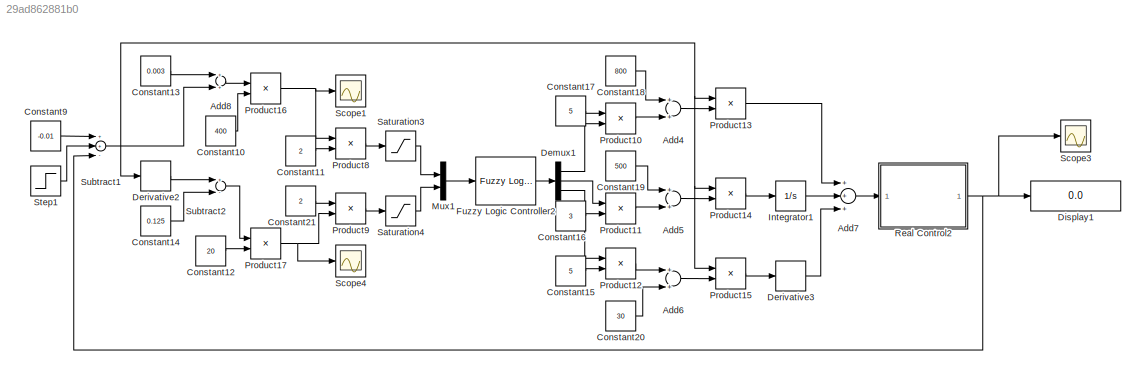
MODEL slx_29ad862881b0
KIND model
BLOCK [Sum] Add4
  InputSameDT = off
  OutDataTypeStr = Inherit: Inherit via internal rule
  Ports = [2, 1]
  SaturateOnIntegerOverflow = off
BLOCK [Sum] Add5
  InputSameDT = off
  OutDataTypeStr = Inherit: Inherit via internal rule
  Ports = [2, 1]
  SaturateOnIntegerOverflow = off
BLOCK [Sum] Add6
  InputSameDT = off
  OutDataTypeStr = Inherit: Inherit via internal rule
  Ports = [2, 1]
  SaturateOnIntegerOverflow = off
BLOCK [Sum] Add7
  InputSameDT = off
  Inputs = +++
  OutDataTypeStr = Inherit: Inherit via internal rule
  Ports = [3, 1]
  SaturateOnIntegerOverflow = off
BLOCK [Sum] Add8
  InputSameDT = off
  OutDataTypeStr = Inherit: Inherit via internal rule
  Ports = [2, 1]
  SaturateOnIntegerOverflow = off
BLOCK [Constant] Constant10
  Value = 400
BLOCK [Constant] Constant11
  Value = 2
BLOCK [Constant] Constant12
  Value = 20
BLOCK [Constant] Constant13
  Value = 0.003
BLOCK [Constant] Constant14
  Value = 0.125
BLOCK [Constant] Constant15
  Value = 5
BLOCK [Constant] Constant16
  Value = 3
BLOCK [Constant] Constant17
  Value = 5
BLOCK [Constant] Constant18
  Value = 800
BLOCK [Constant] Constant19
  Value = 500
BLOCK [Constant] Constant20
  Value = 30
BLOCK [Constant] Constant21
  Value = 2
BLOCK [Constant] Constant9
  Value = -0.01
BLOCK [Demux] Demux1
  DisplayOption = bar
  Outputs = 3
  Ports = [1, 3]
BLOCK [Derivative] Derivative2
BLOCK [Derivative] Derivative3
BLOCK [Display] Display1
  Decimation = 1
  Ports = [1]
BLOCK [Reference] Fuzzy Logic Controller2  REF=fuzblock/Fuzzy Logic   (lib defined in mdl_858b3b3e7478)
Controller
  Ports = [1, 1]
  SourceBlock = fuzblock/Fuzzy Logic \nController
  SourceType = FIS
  fis = [test]
BLOCK [Integrator] Integrator1
  Ports = [1, 1]
BLOCK [Mux] Mux1
  DisplayOption = bar
  Inputs = 2
  Ports = [2, 1]
BLOCK [Product] Product10
  InputSameDT = off
  OutDataTypeStr = Inherit: Inherit via internal rule
  Ports = [2, 1]
  RndMeth = Floor
  SaturateOnIntegerOverflow = off
BLOCK [Product] Product11
  InputSameDT = off
  OutDataTypeStr = Inherit: Inherit via internal rule
  Ports = [2, 1]
  RndMeth = Floor
  SaturateOnIntegerOverflow = off
BLOCK [Product] Product12
  InputSameDT = off
  OutDataTypeStr = Inherit: Inherit via internal rule
  Ports = [2, 1]
  RndMeth = Floor
  SaturateOnIntegerOverflow = off
BLOCK [Product] Product13
  InputSameDT = off
  OutDataTypeStr = Inherit: Inherit via internal rule
  Ports = [2, 1]
  RndMeth = Floor
  SaturateOnIntegerOverflow = off
BLOCK [Product] Product14
  InputSameDT = off
  OutDataTypeStr = Inherit: Inherit via internal rule
  Ports = [2, 1]
  RndMeth = Floor
  SaturateOnIntegerOverflow = off
BLOCK [Product] Product15
  InputSameDT = off
  OutDataTypeStr = Inherit: Inherit via internal rule
  Ports = [2, 1]
  RndMeth = Floor
  SaturateOnIntegerOverflow = off
BLOCK [Product] Product16
  InputSameDT = off
  OutDataTypeStr = Inherit: Inherit via internal rule
  Ports = [2, 1]
  RndMeth = Floor
  SaturateOnIntegerOverflow = off
BLOCK [Product] Product17
  InputSameDT = off
  OutDataTypeStr = Inherit: Inherit via internal rule
  Ports = [2, 1]
  RndMeth = Floor
  SaturateOnIntegerOverflow = off
BLOCK [Product] Product8
  InputSameDT = off
  OutDataTypeStr = Inherit: Inherit via internal rule
  Ports = [2, 1]
  RndMeth = Floor
  SaturateOnIntegerOverflow = off
BLOCK [Product] Product9
  InputSameDT = off
  OutDataTypeStr = Inherit: Inherit via internal rule
  Ports = [2, 1]
  RndMeth = Floor
  SaturateOnIntegerOverflow = off
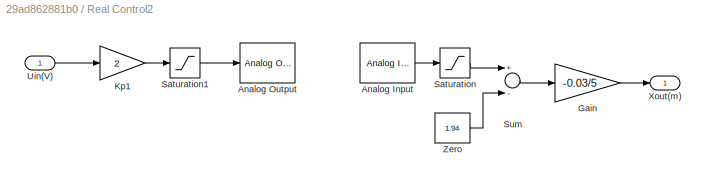
BLOCK [SubSystem] Real Control2
  Ports = [1, 1]
  RequestExecContextInheritance = off
BLOCK [Reference] Real Control2/Analog Input  REF=rtwinlib/Analog Input
  AttributesFormatString = Advantech\nPCI-1711 [auto]
  Channels = 1
  DataType = 1
  DrvAddress = 4294967295
  DrvName = Advantech/PCI-1711
  DrvOptions = zeros(1,0)
  MaxMissedTicks = 10
  Ports = [0, 1]
  RangeMode = 1
  SampleTime = 0.001
  ShowMissedTicks = off
  SourceBlock = rtwinlib/Analog Input
  SourceType = RTWin Analog Input
  VoltRange = 2
  YieldWhenWaiting = off
BLOCK [Reference] Real Control2/Analog Output  REF=rtwinlib/Analog Output
  AttributesFormatString = Advantech\nPCI-1711 [auto]
  Channels = 1
  DrvAddress = 4294967295
  DrvName = Advantech/PCI-1711
  DrvOptions = zeros(1,0)
  FinalValue = -10
  InitialValue = -10
  MaxMissedTicks = 10
  Ports = [1]
  RangeMode = 1
  SampleTime = 0.001
  ShowMissedTicks = off
  SourceBlock = rtwinlib/Analog Output
  SourceType = RTWin Analog Output
  VoltRange = 2
  YieldWhenWaiting = off
BLOCK [Gain] Real Control2/Gain
  Gain = -0.03/5
BLOCK [Gain] Real Control2/Kp1
  Gain = 2
BLOCK [Saturate] Real Control2/Saturation
  InputPortMap = u0
  LowerLimit = 0
  Ports = [1, 1]
  UpperLimit = 5
BLOCK [Saturate] Real Control2/Saturation1
  InputPortMap = u0
  LowerLimit = 0
  Ports = [1, 1]
  UpperLimit = 10
BLOCK [Sum] Real Control2/Sum
  InputSameDT = off
  Inputs = +-
  Ports = [2, 1]
BLOCK [Inport] Real Control2/Uin(V)
  IconDisplay = Port number
BLOCK [Outport] Real Control2/Xout(m)
  IconDisplay = Port number
BLOCK [Constant] Real Control2/Zero
  SampleTime = -1
  Value = 1.94
BLOCK [Saturate] Saturation3
  InputPortMap = u0
  Ports = [1, 1]
BLOCK [Saturate] Saturation4
  InputPortMap = u0
  Ports = [1, 1]
BLOCK [Scope] Scope1
  Floating = off
  NumInputPorts = 1
  Ports = [1]
  ShowLegends = off
  YMax = -0.007
  YMin = -0.012
BLOCK [Scope] Scope3
  Floating = off
  NumInputPorts = 1
  Ports = [1]
  SaveName = ScopeData3
  ShowLegends = off
  YMax = -0.0075
  YMin = -0.01
BLOCK [Scope] Scope4
  Floating = off
  NumInputPorts = 1
  Ports = [1]
  SaveName = ScopeData1
  ShowLegends = off
  TimeRange = 1.368821292775666
  YMax = -0.007546875000000002
  YMin = -0.007921875000000002
BLOCK [Step] Step1
  After = 0.001
  SampleTime = 0
  Time = 10
BLOCK [Sum] Subtract1
  InputSameDT = off
  Inputs = ++-
  OutDataTypeStr = Inherit: Inherit via internal rule
  Ports = [3, 1]
  SaturateOnIntegerOverflow = off
BLOCK [Sum] Subtract2
  InputSameDT = off
  Inputs = +-
  OutDataTypeStr = Inherit: Inherit via internal rule
  Ports = [2, 1]
  SaturateOnIntegerOverflow = off
LINE Add4:1 -> Product13:2
LINE Add5:1 -> Product14:2
LINE Add6:1 -> Product15:2
LINE Add7:1 -> Real Control2:1
LINE Add8:1 -> Product16:1
LINE Constant10:1 -> Product16:2
LINE Constant11:1 -> Product8:2
LINE Constant12:1 -> Product17:2
LINE Constant13:1 -> Add8:1
LINE Constant14:1 -> Subtract2:2
LINE Constant15:1 -> Product12:2
LINE Constant16:1 -> Product11:2
LINE Constant17:1 -> Product10:1
LINE Constant18:1 -> Add4:1
LINE Constant19:1 -> Add5:1
LINE Constant20:1 -> Add6:2
LINE Constant21:1 -> Product9:1
LINE Constant9:1 -> Subtract1:1
LINE Demux1:1 -> Product10:2
LINE Demux1:2 -> Product11:1
LINE Demux1:3 -> Product12:1
LINE Derivative2:1 -> Subtract2:1
LINE Derivative3:1 -> Add7:3
LINE Fuzzy Logic Controller2:1 -> Demux1:1
LINE Integrator1:1 -> Add7:2
LINE Mux1:1 -> Fuzzy Logic Controller2:1
LINE Product10:1 -> Add4:2
LINE Product11:1 -> Add5:2
LINE Product12:1 -> Add6:1
LINE Product13:1 -> Add7:1
LINE Product14:1 -> Integrator1:1
LINE Product15:1 -> Derivative3:1
NET Product16:1 -> Product8:1, Scope1:1
NET Product17:1 -> Product9:2, Scope4:1
LINE Product8:1 -> Saturation3:1
LINE Product9:1 -> Saturation4:1
LINE Real Control2/Analog Input:1 -> Real Control2/Saturation:1
LINE Real Control2/Gain:1 -> Real Control2/Xout(m):1
LINE Real Control2/Kp1:1 -> Real Control2/Saturation1:1
LINE Real Control2/Saturation1:1 -> Real Control2/Analog Output:1
LINE Real Control2/Saturation:1 -> Real Control2/Sum:1
LINE Real Control2/Sum:1 -> Real Control2/Gain:1
LINE Real Control2/Uin(V):1 -> Real Control2/Kp1:1
LINE Real Control2/Zero:1 -> Real Control2/Sum:2
NET Real Control2:1 -> Display1:1, Scope3:1, Subtract1:3
LINE Saturation3:1 -> Mux1:1
LINE Saturation4:1 -> Mux1:2
LINE Step1:1 -> Subtract1:2
NET Subtract1:1 -> Add8:2, Derivative2:1, Product13:1, Product14:1, Product15:1
LINE Subtract2:1 -> Product17:1
note: NET lines group one-source signal fan-out (src -> all destinations, sorted); 1:1 wires keep LINE
